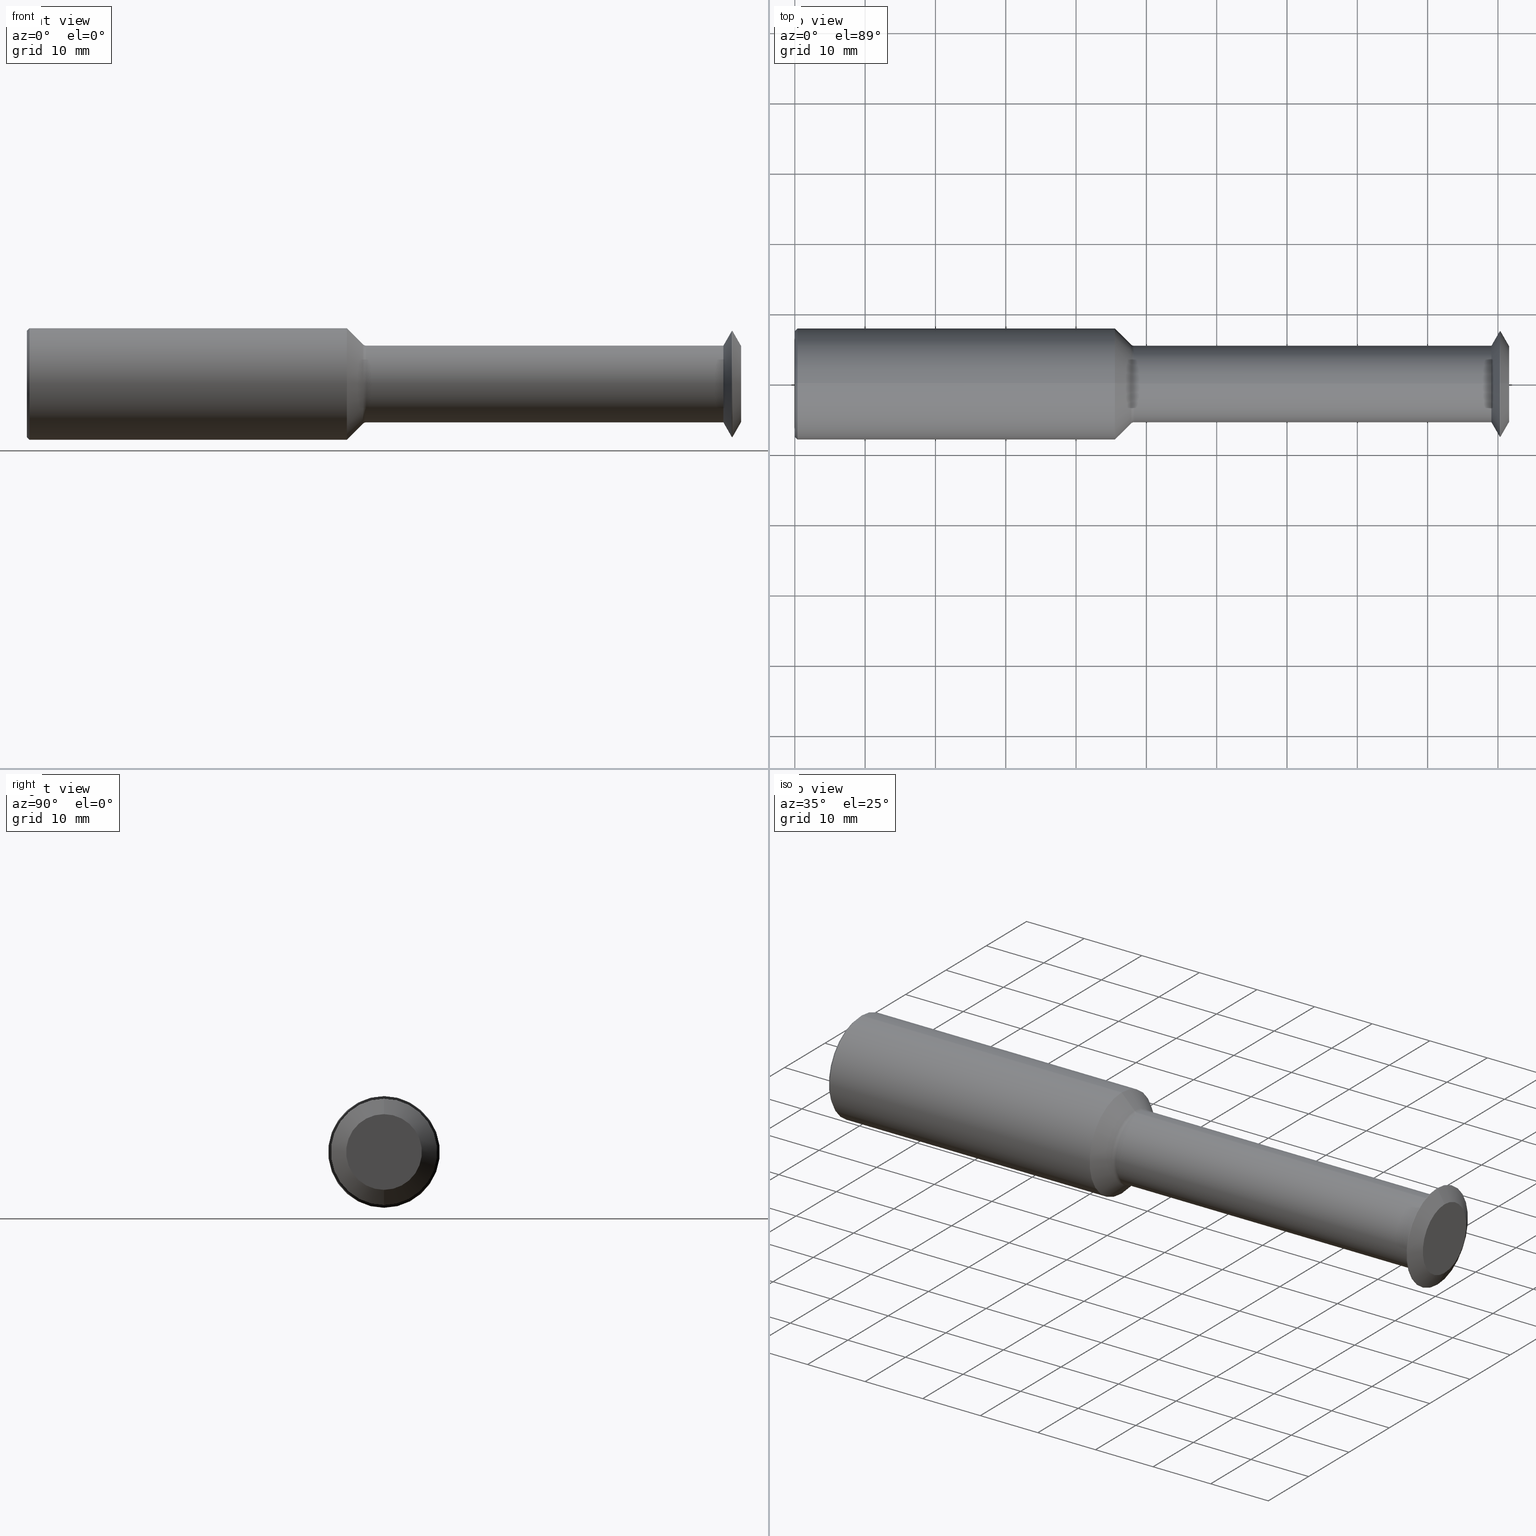
[diagram: canonical four-view strip — front | top / right | iso, engineering-drawing reading convention]
A machine part, canonical four-view strip (front | top / right | iso — engineering-drawing reading convention). The complete STEP part file that produces these views, byte-faithful:
ISO-10303-21;
HEADER;
FILE_DESCRIPTION (( 'STEP AP214' ),
    '1' );
FILE_NAME ('SPTM595L.STEP',
    '2019-04-23T20:43:46',
    ( '' ),
    ( '' ),
    'SwSTEP 2.0',
    'SolidWorks 2018',
    '' );
FILE_SCHEMA (( 'AUTOMOTIVE_DESIGN' ));
ENDSEC;

DATA;
#1 = FACE_OUTER_BOUND ( 'NONE', #487, .T. ) ;
#2 = ORIENTED_EDGE ( 'NONE', *, *, #21, .T. ) ;
#3 = CARTESIAN_POINT ( 'NONE',  ( 1.792084553538009439, 0.0000000000000000000, 0.0000000000000000000 ) ) ;
#4 =( NAMED_UNIT ( * ) PLANE_ANGLE_UNIT ( ) SI_UNIT ( $, .RADIAN. ) );
#5 = ORIENTED_EDGE ( 'NONE', *, *, #110, .F. ) ;
#6 = CARTESIAN_POINT ( 'NONE',  ( 4.000000000000000000, 0.0000000000000000000, 0.0000000000000000000 ) ) ;
#7 = APPLICATION_PROTOCOL_DEFINITION ( 'draft international standard', 'automotive_design', 1998, #149 ) ;
#8 = ORIENTED_EDGE ( 'NONE', *, *, #407, .T. ) ;
#9 = DIRECTION ( 'NONE',  ( -1.000000000000000000, -0.0000000000000000000, -0.0000000000000000000 ) ) ;
#10 = CARTESIAN_POINT ( 'NONE',  ( 0.0000000000000000000, 0.0000000000000000000, 0.0000000000000000000 ) ) ;
#11 = CIRCLE ( 'NONE', #211, 0.3123500000000000165 ) ;
#12 = VERTEX_POINT ( 'NONE', #296 ) ;
#13 = CIRCLE ( 'NONE', #41, 0.2149999999999989975 ) ;
#14 = EDGE_CURVE ( 'NONE', #370, #381, #327, .T. ) ;
#15 = VECTOR ( 'NONE', #272, 39.37007874015748143 ) ;
#16 = CARTESIAN_POINT ( 'NONE',  ( 3.947934553538009705, 0.0000000000000000000, 0.2974999999999992650 ) ) ;
#17 = LINE ( 'NONE', #308, #44 ) ;
#18 = VECTOR ( 'NONE', #354, 39.37007874015748143 ) ;
#19 = CARTESIAN_POINT ( 'NONE',  ( 1.882112223067673007, 0.0000000000000000000, 0.0000000000000000000 ) ) ;
#20 = AXIS2_PLACEMENT_3D ( 'NONE', #6, #258, #126 ) ;
#21 = EDGE_CURVE ( 'NONE', #375, #341, #192, .T. ) ;
#22 = CARTESIAN_POINT ( 'NONE',  ( 4.000000000000000000, 2.596251214192379353E-17, -0.2119999999999992446 ) ) ;
#23 = DIRECTION ( 'NONE',  ( 0.0000000000000000000, 0.0000000000000000000, 1.000000000000000000 ) ) ;
#24 = SHAPE_DEFINITION_REPRESENTATION ( #472, #422 ) ;
#25 = CARTESIAN_POINT ( 'NONE',  ( 3.947934553538009705, 3.643324227463366491E-17, 0.2974999999999992650 ) ) ;
#26 = AXIS2_PLACEMENT_3D ( 'NONE', #239, #431, #271 ) ;
#27 = ORIENTED_EDGE ( 'NONE', *, *, #61, .T. ) ;
#28 = CARTESIAN_POINT ( 'NONE',  ( 0.0000000000000000000, 0.0000000000000000000, 0.0000000000000000000 ) ) ;
#29 = AXIS2_PLACEMENT_3D ( 'NONE', #182, #313, #74 ) ;
#30 = EDGE_CURVE ( 'NONE', #12, #147, #491, .T. ) ;
#31 = DIRECTION ( 'NONE',  ( 0.0000000000000000000, 0.0000000000000000000, 1.000000000000000000 ) ) ;
#32 = CYLINDRICAL_SURFACE ( 'NONE', #131, 0.3123500000000000165 ) ;
#33 = EDGE_CURVE ( 'NONE', #97, #375, #324, .T. ) ;
#34 = ORIENTED_EDGE ( 'NONE', *, *, #100, .F. ) ;
#35 = UNCERTAINTY_MEASURE_WITH_UNIT (LENGTH_MEASURE( 1.000000000000000082E-05 ), #225, 'distance_accuracy_value', 'NONE');
#36 = CIRCLE ( 'NONE', #432, 0.2119999999999992446 ) ;
#37 = CIRCLE ( 'NONE', #235, 0.3123500000000000165 ) ;
#38 = VECTOR ( 'NONE', #193, 39.37007874015748143 ) ;
#39 = CARTESIAN_POINT ( 'NONE',  ( 1.899789892597337326, 0.0000000000000000000, 0.2399999999999992417 ) ) ;
#40 = VERTEX_POINT ( 'NONE', #128 ) ;
#41 = AXIS2_PLACEMENT_3D ( 'NONE', #274, #429, #31 ) ;
#42 = ORIENTED_EDGE ( 'NONE', *, *, #480, .T. ) ;
#43 = DIRECTION ( 'NONE',  ( 0.0000000000000000000, 0.0000000000000000000, 1.000000000000000000 ) ) ;
#44 = VECTOR ( 'NONE', #162, 39.37007874015748143 ) ;
#45 = TOROIDAL_SURFACE ( 'NONE', #494, 0.2399999999999992417, 0.02500000000000025119 ) ;
#46 = AXIS2_PLACEMENT_3D ( 'NONE', #64, #394, #52 ) ;
#47 = ORIENTED_EDGE ( 'NONE', *, *, #146, .F. ) ;
#48 = ORIENTED_EDGE ( 'NONE', *, *, #50, .F. ) ;
#49 = APPLICATION_CONTEXT ( 'automotive_design' ) ;
#50 = EDGE_CURVE ( 'NONE', #381, #402, #501, .T. ) ;
#51 = ADVANCED_FACE ( 'NONE', ( #106 ), #236, .T. ) ;
#52 = DIRECTION ( 'NONE',  ( 0.0000000000000000000, 0.0000000000000000000, 1.000000000000000000 ) ) ;
#53 =( GEOMETRIC_REPRESENTATION_CONTEXT ( 3 ) GLOBAL_UNCERTAINTY_ASSIGNED_CONTEXT ( ( #458 ) ) GLOBAL_UNIT_ASSIGNED_CONTEXT ( ( #466, #298, #142 ) ) REPRESENTATION_CONTEXT ( 'NONE', 'WORKASPACE' ) );
#54 = FACE_OUTER_BOUND ( 'NONE', #158, .T. ) ;
#55 = ORIENTED_EDGE ( 'NONE', *, *, #412, .F. ) ;
#56 = EDGE_LOOP ( 'NONE', ( #278, #59, #390, #78 ) ) ;
#57 = MANIFOLD_SOLID_BREP ( '3BF0D88D-D43F-4f87-A83C-24182A9B4820-GAAFaceID9', #413 ) ;
#58 = DIRECTION ( 'NONE',  ( 0.0000000000000000000, 0.0000000000000000000, 1.000000000000000000 ) ) ;
#59 = ORIENTED_EDGE ( 'NONE', *, *, #127, .T. ) ;
#60 = ORIENTED_EDGE ( 'NONE', *, *, #111, .F. ) ;
#61 = EDGE_CURVE ( 'NONE', #381, #370, #11, .T. ) ;
#62 = CARTESIAN_POINT ( 'NONE',  ( 3.947934553538009705, 0.0000000000000000000, -0.2974999999999992650 ) ) ;
#63 = AXIS2_PLACEMENT_3D ( 'NONE', #368, #133, #330 ) ;
#64 = CARTESIAN_POINT ( 'NONE',  ( 3.947934553538009705, 0.0000000000000000000, 0.0000000000000000000 ) ) ;
#65 = CARTESIAN_POINT ( 'NONE',  ( 0.0000000000000000000, 0.0000000000000000000, 0.0000000000000000000 ) ) ;
#66 = FACE_OUTER_BOUND ( 'NONE', #231, .T. ) ;
#67 = DIRECTION ( 'NONE',  ( 0.0000000000000000000, 0.0000000000000000000, 1.000000000000000000 ) ) ;
#68 = ORIENTED_EDGE ( 'NONE', *, *, #118, .T. ) ;
#69 = DIRECTION ( 'NONE',  ( 0.0000000000000000000, 0.0000000000000000000, 1.000000000000000000 ) ) ;
#70 = CARTESIAN_POINT ( 'NONE',  ( 1.899789892597337326, 0.0000000000000000000, 0.0000000000000000000 ) ) ;
#71 = LENGTH_MEASURE_WITH_UNIT ( LENGTH_MEASURE( 0.02539999999999999897 ), #267 );
#72 = FILL_AREA_STYLE_COLOUR ( '', #307 ) ;
#73 = AXIS2_PLACEMENT_3D ( 'NONE', #107, #121, #159 ) ;
#74 = DIRECTION ( 'NONE',  ( 0.0000000000000000000, 0.0000000000000000000, 1.000000000000000000 ) ) ;
#75 = VECTOR ( 'NONE', #282, 39.37007874015748143 ) ;
#76 = ORIENTED_EDGE ( 'NONE', *, *, #33, .F. ) ;
#77 = DIRECTION ( 'NONE',  ( -1.000000000000000000, -0.0000000000000000000, -0.0000000000000000000 ) ) ;
#78 = ORIENTED_EDGE ( 'NONE', *, *, #304, .F. ) ;
#79 = CARTESIAN_POINT ( 'NONE',  ( 0.0000000000000000000, 3.733335767200705936E-17, 0.2973500000000000587 ) ) ;
#80 = ORIENTED_EDGE ( 'NONE', *, *, #462, .F. ) ;
#81 = VERTEX_POINT ( 'NONE', #90 ) ;
#82 = LINE ( 'NONE', #486, #157 ) ;
#83 = EDGE_LOOP ( 'NONE', ( #27, #383, #371, #48 ) ) ;
#84 = PRESENTATION_LAYER_ASSIGNMENT (  '', '', ( #373 ) ) ;
#85 = DIMENSIONAL_EXPONENTS ( 1.000000000000000000, 0.0000000000000000000, 0.0000000000000000000, 0.0000000000000000000, 0.0000000000000000000, 0.0000000000000000000, 0.0000000000000000000 ) ;
#86 = PRESENTATION_STYLE_ASSIGNMENT (( #303 ) ) ;
#87 = CIRCLE ( 'NONE', #187, 0.2223223304703354497 ) ;
#88 = AXIS2_PLACEMENT_3D ( 'NONE', #39, #326, #321 ) ;
#89 = ORIENTED_EDGE ( 'NONE', *, *, #21, .F. ) ;
#90 = CARTESIAN_POINT ( 'NONE',  ( 4.000000000000000000, 3.119787720827873230E-17, -0.2119999999999992446 ) ) ;
#91 = EDGE_CURVE ( 'NONE', #402, #356, #37, .T. ) ;
#92 = ADVANCED_FACE ( 'NONE', ( #287 ), #254, .T. ) ;
#93 = EDGE_CURVE ( 'NONE', #397, #227, #292, .T. ) ;
#94 = ADVANCED_FACE ( 'NONE', ( #405 ), #138, .T. ) ;
#95 = ORIENTED_EDGE ( 'NONE', *, *, #363, .F. ) ;
#96 = ADVANCED_FACE ( 'NONE', ( #424 ), #452, .T. ) ;
#97 = VERTEX_POINT ( 'NONE', #485 ) ;
#98 =( NAMED_UNIT ( * ) SI_UNIT ( $, .STERADIAN. ) SOLID_ANGLE_UNIT ( ) );
#99 = ADVANCED_FACE ( 'NONE', ( #66 ), #350, .T. ) ;
#100 = EDGE_CURVE ( 'NONE', #227, #397, #184, .T. ) ;
#101 = DIRECTION ( 'NONE',  ( 0.0000000000000000000, 0.0000000000000000000, 1.000000000000000000 ) ) ;
#102 = ORIENTED_EDGE ( 'NONE', *, *, #462, .T. ) ;
#103 = DIRECTION ( 'NONE',  ( 1.000000000000000000, 0.0000000000000000000, 0.0000000000000000000 ) ) ;
#104 = FACE_OUTER_BOUND ( 'NONE', #56, .T. ) ;
#105 = DIRECTION ( 'NONE',  ( -1.000000000000000000, -0.0000000000000000000, -0.0000000000000000000 ) ) ;
#106 = FACE_OUTER_BOUND ( 'NONE', #83, .T. ) ;
#107 = CARTESIAN_POINT ( 'NONE',  ( 0.01500000000000011394, 0.0000000000000000000, 0.0000000000000000000 ) ) ;
#108 = DIRECTION ( 'NONE',  ( 0.0000000000000000000, 0.0000000000000000000, -1.000000000000000000 ) ) ;
#109 = ORIENTED_EDGE ( 'NONE', *, *, #30, .T. ) ;
#110 = EDGE_CURVE ( 'NONE', #341, #375, #13, .T. ) ;
#111 = EDGE_CURVE ( 'NONE', #206, #425, #230, .T. ) ;
#112 = DIRECTION ( 'NONE',  ( -1.000000000000000000, -0.0000000000000000000, -0.0000000000000000000 ) ) ;
#113 = CARTESIAN_POINT ( 'NONE',  ( 1.882112223067673007, 0.0000000000000000000, 0.0000000000000000000 ) ) ;
#114 = ORIENTED_EDGE ( 'NONE', *, *, #91, .F. ) ;
#115 = LINE ( 'NONE', #22, #143 ) ;
#116 = CARTESIAN_POINT ( 'NONE',  ( 4.000000000000000000, 0.0000000000000000000, 0.2119999999999992446 ) ) ;
#117 = ORIENTED_EDGE ( 'NONE', *, *, #489, .F. ) ;
#118 = EDGE_CURVE ( 'NONE', #97, #279, #488, .T. ) ;
#119 = CARTESIAN_POINT ( 'NONE',  ( 3.900590701688721573, 3.138157422815083488E-17, 0.2149999999999992473 ) ) ;
#120 = EDGE_CURVE ( 'NONE', #81, #40, #188, .T. ) ;
#121 = DIRECTION ( 'NONE',  ( 1.000000000000000000, 0.0000000000000000000, 0.0000000000000000000 ) ) ;
#122 = EDGE_CURVE ( 'NONE', #370, #356, #319, .T. ) ;
#123 = FACE_OUTER_BOUND ( 'NONE', #244, .T. ) ;
#124 = AXIS2_PLACEMENT_3D ( 'NONE', #349, #345, #445 ) ;
#125 =( NAMED_UNIT ( * ) PLANE_ANGLE_UNIT ( ) SI_UNIT ( $, .RADIAN. ) );
#126 = DIRECTION ( 'NONE',  ( 0.0000000000000000000, 0.0000000000000000000, 1.000000000000000000 ) ) ;
#127 = EDGE_CURVE ( 'NONE', #490, #370, #129, .T. ) ;
#128 = CARTESIAN_POINT ( 'NONE',  ( 4.000000000000000000, 0.0000000000000000000, 0.2119999999999992446 ) ) ;
#129 = LINE ( 'NONE', #229, #15 ) ;
#130 = DIRECTION ( 'NONE',  ( -1.000000000000000000, -0.0000000000000000000, -0.0000000000000000000 ) ) ;
#131 = AXIS2_PLACEMENT_3D ( 'NONE', #65, #439, #224 ) ;
#132 = ADVANCED_FACE ( 'NONE', ( #104 ), #220, .T. ) ;
#133 = DIRECTION ( 'NONE',  ( -1.000000000000000000, 0.0000000000000000000, -0.0000000000000000000 ) ) ;
#134 = ORIENTED_EDGE ( 'NONE', *, *, #305, .T. ) ;
#135 = CIRCLE ( 'NONE', #353, 0.02500000000000024425 ) ;
#136 = DIRECTION ( 'NONE',  ( -1.000000000000000000, -0.0000000000000000000, -0.0000000000000000000 ) ) ;
#137 = ORIENTED_EDGE ( 'NONE', *, *, #377, .T. ) ;
#138 = CONICAL_SURFACE ( 'NONE', #249, 0.2223223304703354497, 0.7853981633974538301 ) ;
#139 = DIRECTION ( 'NONE',  ( 0.0000000000000000000, 0.0000000000000000000, -1.000000000000000000 ) ) ;
#140 = CYLINDRICAL_SURFACE ( 'NONE', #322, 0.2974999999999992650 ) ;
#141 = ADVANCED_FACE ( 'NONE', ( #333 ), #404, .T. ) ;
#142 =( NAMED_UNIT ( * ) SI_UNIT ( $, .STERADIAN. ) SOLID_ANGLE_UNIT ( ) );
#143 = VECTOR ( 'NONE', #347, 39.37007874015748143 ) ;
#144 = FACE_OUTER_BOUND ( 'NONE', #194, .T. ) ;
#145 = EDGE_LOOP ( 'NONE', ( #484, #434, #283, #446 ) ) ;
#146 = EDGE_CURVE ( 'NONE', #356, #402, #291, .T. ) ;
#147 = VERTEX_POINT ( 'NONE', #79 ) ;
#148 = DIRECTION ( 'NONE',  ( 1.000000000000000000, 0.0000000000000000000, 0.0000000000000000000 ) ) ;
#149 = APPLICATION_CONTEXT ( 'automotive_design' ) ;
#150 = DIRECTION ( 'NONE',  ( 0.0000000000000000000, 0.0000000000000000000, 1.000000000000000000 ) ) ;
#151 = PLANE ( 'NONE',  #63 ) ;
#152 = DIRECTION ( 'NONE',  ( 0.0000000000000000000, 0.0000000000000000000, 1.000000000000000000 ) ) ;
#153 = VECTOR ( 'NONE', #443, 39.37007874015748143 ) ;
#154 = PRESENTATION_STYLE_ASSIGNMENT (( #294 ) ) ;
#155 = ORIENTED_EDGE ( 'NONE', *, *, #91, .T. ) ;
#156 = CARTESIAN_POINT ( 'NONE',  ( 4.000000000000000000, 0.0000000000000000000, 0.0000000000000000000 ) ) ;
#157 = VECTOR ( 'NONE', #177, 39.37007874015748143 ) ;
#158 = EDGE_LOOP ( 'NONE', ( #55, #273, #137, #60 ) ) ;
#159 = DIRECTION ( 'NONE',  ( 0.0000000000000000000, 0.0000000000000000000, -1.000000000000000000 ) ) ;
#160 = CARTESIAN_POINT ( 'NONE',  ( 1.792084553538009439, 0.0000000000000000000, 0.3123500000000000165 ) ) ;
#161 = CARTESIAN_POINT ( 'NONE',  ( 0.0000000000000000000, 0.0000000000000000000, -0.2973500000000000587 ) ) ;
#162 = DIRECTION ( 'NONE',  ( -1.000000000000000000, -0.0000000000000000000, -0.0000000000000000000 ) ) ;
#163 = AXIS2_PLACEMENT_3D ( 'NONE', #374, #205, #69 ) ;
#164 = EDGE_CURVE ( 'NONE', #490, #253, #380, .T. ) ;
#165 = CARTESIAN_POINT ( 'NONE',  ( 1.899789892597337326, 2.939152317953638724E-17, -0.2399999999999992417 ) ) ;
#166 = PRODUCT_DEFINITION ( 'UNKNOWN', '', #409, #285 ) ;
#167 = CARTESIAN_POINT ( 'NONE',  ( 0.0000000000000000000, 0.0000000000000000000, 0.2149999999999991362 ) ) ;
#168 = CARTESIAN_POINT ( 'NONE',  ( 1.899789892597337326, 0.0000000000000000000, 0.0000000000000000000 ) ) ;
#169 = LINE ( 'NONE', #167, #270 ) ;
#170 = FILL_AREA_STYLE ('',( #72 ) ) ;
#171 = ORIENTED_EDGE ( 'NONE', *, *, #118, .F. ) ;
#172 = CARTESIAN_POINT ( 'NONE',  ( 1.882112223067673007, 0.0000000000000000000, 0.0000000000000000000 ) ) ;
#173 = ORIENTED_EDGE ( 'NONE', *, *, #122, .F. ) ;
#174 = FILL_AREA_STYLE_COLOUR ( '', #290 ) ;
#175 = EDGE_CURVE ( 'NONE', #147, #12, #289, .T. ) ;
#176 = DIRECTION ( 'NONE',  ( 0.0000000000000000000, 0.0000000000000000000, 1.000000000000000000 ) ) ;
#177 = DIRECTION ( 'NONE',  ( 0.7071067811865507924, 8.659560562354895880E-17, 0.7071067811865443531 ) ) ;
#178 = DIRECTION ( 'NONE',  ( 0.0000000000000000000, 0.0000000000000000000, 1.000000000000000000 ) ) ;
#179 = DIRECTION ( 'NONE',  ( 1.000000000000000000, 0.0000000000000000000, 0.0000000000000000000 ) ) ;
#180 = EDGE_CURVE ( 'NONE', #12, #356, #419, .T. ) ;
#181 = EDGE_LOOP ( 'NONE', ( #76, #68, #42, #89 ) ) ;
#182 = CARTESIAN_POINT ( 'NONE',  ( 3.900590701688721573, 0.0000000000000000000, 0.0000000000000000000 ) ) ;
#183 = ORIENTED_EDGE ( 'NONE', *, *, #295, .F. ) ;
#184 = CIRCLE ( 'NONE', #269, 0.2974999999999992650 ) ;
#185 = EDGE_LOOP ( 'NONE', ( #334, #134, #430, #228 ) ) ;
#186 = DIRECTION ( 'NONE',  ( -1.000000000000000000, -0.0000000000000000000, -0.0000000000000000000 ) ) ;
#187 = AXIS2_PLACEMENT_3D ( 'NONE', #113, #276, #152 ) ;
#188 = CIRCLE ( 'NONE', #286, 0.2119999999999992446 ) ;
#189 = DIRECTION ( 'NONE',  ( 0.0000000000000000000, 0.0000000000000000000, 1.000000000000000000 ) ) ;
#190 = CARTESIAN_POINT ( 'NONE',  ( 1.899789892597337326, 0.0000000000000000000, 0.0000000000000000000 ) ) ;
#191 = AXIS2_PLACEMENT_3D ( 'NONE', #168, #130, #101 ) ;
#192 = CIRCLE ( 'NONE', #191, 0.2149999999999989975 ) ;
#193 = DIRECTION ( 'NONE',  ( -0.7071067811865435759, 0.0000000000000000000, 0.7071067811865514585 ) ) ;
#194 = EDGE_LOOP ( 'NONE', ( #80, #423, #196, #400 ) ) ;
#195 = CARTESIAN_POINT ( 'NONE',  ( 0.0000000000000000000, 3.643324227463366491E-17, -0.2974999999999992650 ) ) ;
#196 = ORIENTED_EDGE ( 'NONE', *, *, #366, .T. ) ;
#197 = ORIENTED_EDGE ( 'NONE', *, *, #305, .F. ) ;
#198 = LENGTH_MEASURE_WITH_UNIT ( LENGTH_MEASURE( 0.02539999999999999897 ), #217 );
#199 = AXIS2_PLACEMENT_3D ( 'NONE', #3, #293, #178 ) ;
#200 = CARTESIAN_POINT ( 'NONE',  ( 3.947934553538009705, 0.0000000000000000000, 0.0000000000000000000 ) ) ;
#201 = STYLED_ITEM ( 'NONE', ( #86 ), #57 ) ;
#202 = DIRECTION ( 'NONE',  ( 0.0000000000000000000, 0.0000000000000000000, 1.000000000000000000 ) ) ;
#203 = FACE_OUTER_BOUND ( 'NONE', #436, .T. ) ;
#204 = DIRECTION ( 'NONE',  ( -1.000000000000000000, -0.0000000000000000000, -0.0000000000000000000 ) ) ;
#205 = DIRECTION ( 'NONE',  ( -1.000000000000000000, -0.0000000000000000000, -0.0000000000000000000 ) ) ;
#206 = VERTEX_POINT ( 'NONE', #344 ) ;
#208 = CARTESIAN_POINT ( 'NONE',  ( 0.0000000000000000000, 0.0000000000000000000, 0.0000000000000000000 ) ) ;
#207 = VECTOR ( 'NONE', #281, 39.37007874015748143 ) ;
#209 =( LENGTH_UNIT ( ) NAMED_UNIT ( * ) SI_UNIT ( $, .METRE. ) );
#210 =( NAMED_UNIT ( * ) SI_UNIT ( $, .STERADIAN. ) SOLID_ANGLE_UNIT ( ) );
#211 = AXIS2_PLACEMENT_3D ( 'NONE', #440, #204, #335 ) ;
#212 = ADVANCED_FACE ( 'NONE', ( #1 ), #140, .T. ) ;
#213 =( CONVERSION_BASED_UNIT ( 'INCH', #198 ) LENGTH_UNIT ( ) NAMED_UNIT ( #85 ) );
#214 = CARTESIAN_POINT ( 'NONE',  ( 4.000000000000000000, 0.0000000000000000000, 0.0000000000000000000 ) ) ;
#215 = DIRECTION ( 'NONE',  ( 0.0000000000000000000, 0.0000000000000000000, -1.000000000000000000 ) ) ;
#216 = DIRECTION ( 'NONE',  ( 0.0000000000000000000, 0.0000000000000000000, 1.000000000000000000 ) ) ;
#217 =( LENGTH_UNIT ( ) NAMED_UNIT ( * ) SI_UNIT ( $, .METRE. ) );
#218 = PRESENTATION_LAYER_ASSIGNMENT (  '', '', ( #201 ) ) ;
#219 = ORIENTED_EDGE ( 'NONE', *, *, #127, .F. ) ;
#220 = CONICAL_SURFACE ( 'NONE', #288, 0.2223223304703354497, 0.7853981633974538301 ) ;
#221 = CARTESIAN_POINT ( 'NONE',  ( 1.899789892597337326, 2.632990618166798327E-17, -0.2149999999999989975 ) ) ;
#222 = FILL_AREA_STYLE ('',( #174 ) ) ;
#223 = LINE ( 'NONE', #351, #38 ) ;
#224 = DIRECTION ( 'NONE',  ( 0.0000000000000000000, 0.0000000000000000000, 1.000000000000000000 ) ) ;
#225 =( CONVERSION_BASED_UNIT ( 'INCH', #414 ) LENGTH_UNIT ( ) NAMED_UNIT ( #437 ) );
#226 = CARTESIAN_POINT ( 'NONE',  ( 0.0000000000000000000, 3.825184277136757839E-17, -0.3123500000000000165 ) ) ;
#227 = VERTEX_POINT ( 'NONE', #460 ) ;
#228 = ORIENTED_EDGE ( 'NONE', *, *, #448, .F. ) ;
#229 = CARTESIAN_POINT ( 'NONE',  ( 1.882112223067673007, 2.722663303894763800E-17, -0.2223223304703354497 ) ) ;
#230 = CIRCLE ( 'NONE', #355, 0.2974999999999992650 ) ;
#231 = EDGE_LOOP ( 'NONE', ( #8, #459, #5, #332 ) ) ;
#232 = LINE ( 'NONE', #62, #153 ) ;
#233 = MECHANICAL_DESIGN_GEOMETRIC_PRESENTATION_REPRESENTATION (  '', ( #201 ), #316 ) ;
#234 = CARTESIAN_POINT ( 'NONE',  ( 1.882112223067673007, 0.0000000000000000000, 0.0000000000000000000 ) ) ;
#235 = AXIS2_PLACEMENT_3D ( 'NONE', #237, #468, #369 ) ;
#236 = CYLINDRICAL_SURFACE ( 'NONE', #325, 0.3123500000000000165 ) ;
#237 = CARTESIAN_POINT ( 'NONE',  ( 0.01500000000000011394, 0.0000000000000000000, 0.0000000000000000000 ) ) ;
#238 = VECTOR ( 'NONE', #299, 39.37007874015748143 ) ;
#239 = CARTESIAN_POINT ( 'NONE',  ( 0.0000000000000000000, 0.0000000000000000000, 0.0000000000000000000 ) ) ;
#240 = LINE ( 'NONE', #25, #75 ) ;
#241 = DIRECTION ( 'NONE',  ( 0.0000000000000000000, 0.0000000000000000000, 1.000000000000000000 ) ) ;
#242 = DIMENSIONAL_EXPONENTS ( 1.000000000000000000, 0.0000000000000000000, 0.0000000000000000000, 0.0000000000000000000, 0.0000000000000000000, 0.0000000000000000000, 0.0000000000000000000 ) ;
#243 = DIRECTION ( 'NONE',  ( -1.000000000000000000, -0.0000000000000000000, -0.0000000000000000000 ) ) ;
#244 = EDGE_LOOP ( 'NONE', ( #197, #171, #260, #314 ) ) ;
#245 = DIRECTION ( 'NONE',  ( -1.000000000000000000, -0.0000000000000000000, -0.0000000000000000000 ) ) ;
#246 = ORIENTED_EDGE ( 'NONE', *, *, #363, .T. ) ;
#247 = EDGE_CURVE ( 'NONE', #253, #490, #87, .T. ) ;
#248 = CARTESIAN_POINT ( 'NONE',  ( 0.0000000000000000000, 0.0000000000000000000, 0.0000000000000000000 ) ) ;
#249 = AXIS2_PLACEMENT_3D ( 'NONE', #19, #420, #241 ) ;
#250 = ADVANCED_FACE ( 'NONE', ( #252 ), #496, .F. ) ;
#251 = FACE_OUTER_BOUND ( 'NONE', #145, .T. ) ;
#252 = FACE_OUTER_BOUND ( 'NONE', #255, .T. ) ;
#253 = VERTEX_POINT ( 'NONE', #352 ) ;
#254 = CYLINDRICAL_SURFACE ( 'NONE', #256, 0.2974999999999992650 ) ;
#255 = EDGE_LOOP ( 'NONE', ( #500, #102, #2, #266 ) ) ;
#256 = AXIS2_PLACEMENT_3D ( 'NONE', #248, #9, #176 ) ;
#257 = ORIENTED_EDGE ( 'NONE', *, *, #304, .T. ) ;
#258 = DIRECTION ( 'NONE',  ( -1.000000000000000000, -0.0000000000000000000, -0.0000000000000000000 ) ) ;
#259 = CONICAL_SURFACE ( 'NONE', #26, 0.2973500000000000587, 0.7853981633974437271 ) ;
#260 = ORIENTED_EDGE ( 'NONE', *, *, #448, .T. ) ;
#261 = DIRECTION ( 'NONE',  ( -1.000000000000000000, -0.0000000000000000000, -0.0000000000000000000 ) ) ;
#262 = EDGE_LOOP ( 'NONE', ( #117, #357, #348, #114 ) ) ;
#263 = AXIS2_PLACEMENT_3D ( 'NONE', #200, #148, #215 ) ;
#264 = DIRECTION ( 'NONE',  ( -1.000000000000000000, -0.0000000000000000000, -0.0000000000000000000 ) ) ;
#265 = DIRECTION ( 'NONE',  ( 0.0000000000000000000, 0.0000000000000000000, 1.000000000000000000 ) ) ;
#266 = ORIENTED_EDGE ( 'NONE', *, *, #366, .F. ) ;
#267 =( LENGTH_UNIT ( ) NAMED_UNIT ( * ) SI_UNIT ( $, .METRE. ) );
#268 = PRODUCT ( 'SPTM595L', 'SPTM595L', '', ( #379 ) ) ;
#269 = AXIS2_PLACEMENT_3D ( 'NONE', #441, #261, #189 ) ;
#270 = VECTOR ( 'NONE', #264, 39.37007874015748143 ) ;
#271 = DIRECTION ( 'NONE',  ( 0.0000000000000000000, 0.0000000000000000000, -1.000000000000000000 ) ) ;
#272 = DIRECTION ( 'NONE',  ( -0.7071067811865435759, 8.659560562354980929E-17, -0.7071067811865514585 ) ) ;
#273 = ORIENTED_EDGE ( 'NONE', *, *, #120, .T. ) ;
#274 = CARTESIAN_POINT ( 'NONE',  ( 1.899789892597337326, 0.0000000000000000000, 0.0000000000000000000 ) ) ;
#275 = AXIS2_PLACEMENT_3D ( 'NONE', #208, #365, #58 ) ;
#276 = DIRECTION ( 'NONE',  ( -1.000000000000000000, -0.0000000000000000000, -0.0000000000000000000 ) ) ;
#277 = AXIS2_PLACEMENT_3D ( 'NONE', #234, #243, #265 ) ;
#278 = ORIENTED_EDGE ( 'NONE', *, *, #247, .T. ) ;
#279 = VERTEX_POINT ( 'NONE', #119 ) ;
#280 = DIRECTION ( 'NONE',  ( -1.000000000000000000, -0.0000000000000000000, -0.0000000000000000000 ) ) ;
#281 = DIRECTION ( 'NONE',  ( 0.7071067811865507924, 0.0000000000000000000, -0.7071067811865443531 ) ) ;
#282 = DIRECTION ( 'NONE',  ( 0.4977310399126166907, 1.062174661273173415E-16, 0.8673314314075705189 ) ) ;
#283 = ORIENTED_EDGE ( 'NONE', *, *, #482, .F. ) ;
#284 = CIRCLE ( 'NONE', #88, 0.02500000000000024425 ) ;
#285 = PRODUCT_DEFINITION_CONTEXT ( 'detailed design', #149, 'design' ) ;
#286 = AXIS2_PLACEMENT_3D ( 'NONE', #156, #495, #378 ) ;
#287 = FACE_OUTER_BOUND ( 'NONE', #457, .T. ) ;
#288 = AXIS2_PLACEMENT_3D ( 'NONE', #172, #300, #499 ) ;
#289 = CIRCLE ( 'NONE', #318, 0.2973500000000000587 ) ;
#290 = COLOUR_RGB ( '',0.7529411764705882248, 0.7529411764705882248, 0.7529411764705882248 ) ;
#291 = CIRCLE ( 'NONE', #73, 0.3123500000000000165 ) ;
#292 = CIRCLE ( 'NONE', #46, 0.2974999999999992650 ) ;
#293 = DIRECTION ( 'NONE',  ( -1.000000000000000000, -0.0000000000000000000, -0.0000000000000000000 ) ) ;
#294 = SURFACE_STYLE_USAGE ( .BOTH. , #449 ) ;
#295 = EDGE_CURVE ( 'NONE', #40, #81, #36, .T. ) ;
#296 = CARTESIAN_POINT ( 'NONE',  ( 0.0000000000000000000, 0.0000000000000000000, -0.2973500000000000587 ) ) ;
#297 = DIRECTION ( 'NONE',  ( -1.000000000000000000, -0.0000000000000000000, -0.0000000000000000000 ) ) ;
#298 =( NAMED_UNIT ( * ) PLANE_ANGLE_UNIT ( ) SI_UNIT ( $, .RADIAN. ) );
#299 = DIRECTION ( 'NONE',  ( -1.000000000000000000, -0.0000000000000000000, -0.0000000000000000000 ) ) ;
#300 = DIRECTION ( 'NONE',  ( -1.000000000000000000, -0.0000000000000000000, -0.0000000000000000000 ) ) ;
#301 = ORIENTED_EDGE ( 'NONE', *, *, #489, .T. ) ;
#302 = FACE_OUTER_BOUND ( 'NONE', #497, .T. ) ;
#303 = SURFACE_STYLE_USAGE ( .BOTH. , #435 ) ;
#304 = EDGE_CURVE ( 'NONE', #253, #381, #223, .T. ) ;
#305 = EDGE_CURVE ( 'NONE', #279, #397, #240, .T. ) ;
#306 = ADVANCED_FACE ( 'NONE', ( #478 ), #259, .T. ) ;
#307 = COLOUR_RGB ( '',0.7529411764705882248, 0.7529411764705882248, 0.7529411764705882248 ) ;
#308 = CARTESIAN_POINT ( 'NONE',  ( 0.0000000000000000000, 0.0000000000000000000, 0.2974999999999992650 ) ) ;
#309 = CARTESIAN_POINT ( 'NONE',  ( 3.950934553538009375, 0.0000000000000000000, 0.0000000000000000000 ) ) ;
#310 = ORIENTED_EDGE ( 'NONE', *, *, #465, .T. ) ;
#311 = CARTESIAN_POINT ( 'NONE',  ( 0.01500000000000011394, 0.0000000000000000000, 0.3123500000000000165 ) ) ;
#312 = AXIS2_PLACEMENT_3D ( 'NONE', #389, #393, #450 ) ;
#313 = DIRECTION ( 'NONE',  ( -1.000000000000000000, -0.0000000000000000000, -0.0000000000000000000 ) ) ;
#314 = ORIENTED_EDGE ( 'NONE', *, *, #100, .T. ) ;
#315 = DIRECTION ( 'NONE',  ( 1.000000000000000000, 0.0000000000000000000, 0.0000000000000000000 ) ) ;
#316 =( GEOMETRIC_REPRESENTATION_CONTEXT ( 3 ) GLOBAL_UNCERTAINTY_ASSIGNED_CONTEXT ( ( #481 ) ) GLOBAL_UNIT_ASSIGNED_CONTEXT ( ( #213, #4, #210 ) ) REPRESENTATION_CONTEXT ( 'NONE', 'WORKASPACE' ) );
#317 = ORIENTED_EDGE ( 'NONE', *, *, #93, .F. ) ;
#318 = AXIS2_PLACEMENT_3D ( 'NONE', #385, #451, #391 ) ;
#319 = LINE ( 'NONE', #226, #433 ) ;
#320 = DIRECTION ( 'NONE',  ( -0.4977310399126251839, 0.0000000000000000000, 0.8673314314075656339 ) ) ;
#321 = DIRECTION ( 'NONE',  ( 0.0000000000000000000, 0.0000000000000000000, -1.000000000000000000 ) ) ;
#322 = AXIS2_PLACEMENT_3D ( 'NONE', #454, #280, #456 ) ;
#323 = ORIENTED_EDGE ( 'NONE', *, *, #175, .T. ) ;
#324 = LINE ( 'NONE', #361, #238 ) ;
#325 = AXIS2_PLACEMENT_3D ( 'NONE', #483, #136, #498 ) ;
#326 = DIRECTION ( 'NONE',  ( 0.0000000000000000000, -1.000000000000000000, 0.0000000000000000000 ) ) ;
#327 = CIRCLE ( 'NONE', #199, 0.3123500000000000165 ) ;
#328 = CONICAL_SURFACE ( 'NONE', #340, 0.2974999999999992650, 1.049815545074584078 ) ;
#329 = LINE ( 'NONE', #116, #358 ) ;
#330 = DIRECTION ( 'NONE',  ( -0.0000000000000000000, 0.0000000000000000000, 1.000000000000000000 ) ) ;
#331 = AXIS2_PLACEMENT_3D ( 'NONE', #190, #395, #23 ) ;
#332 = ORIENTED_EDGE ( 'NONE', *, *, #480, .F. ) ;
#333 = FACE_OUTER_BOUND ( 'NONE', #181, .T. ) ;
#334 = ORIENTED_EDGE ( 'NONE', *, *, #407, .F. ) ;
#335 = DIRECTION ( 'NONE',  ( 0.0000000000000000000, 0.0000000000000000000, 1.000000000000000000 ) ) ;
#336 = AXIS2_PLACEMENT_3D ( 'NONE', #473, #297, #406 ) ;
#337 = APPLICATION_PROTOCOL_DEFINITION ( 'draft international standard', 'automotive_design', 1998, #49 ) ;
#338 = PLANE ( 'NONE',  #124 ) ;
#339 = ORIENTED_EDGE ( 'NONE', *, *, #465, .F. ) ;
#340 = AXIS2_PLACEMENT_3D ( 'NONE', #421, #179, #139 ) ;
#341 = VERTEX_POINT ( 'NONE', #493 ) ;
#342 = AXIS2_PLACEMENT_3D ( 'NONE', #343, #447, #415 ) ;
#343 = CARTESIAN_POINT ( 'NONE',  ( 3.900590701688721573, 0.0000000000000000000, 0.0000000000000000000 ) ) ;
#344 = CARTESIAN_POINT ( 'NONE',  ( 3.950934553538009375, 3.643324227463366491E-17, -0.2974999999999992095 ) ) ;
#345 = DIRECTION ( 'NONE',  ( 1.000000000000000000, 0.0000000000000000000, 0.0000000000000000000 ) ) ;
#346 = CARTESIAN_POINT ( 'NONE',  ( 0.01500000000000011394, 3.825184277136757839E-17, -0.3123500000000000165 ) ) ;
#347 = DIRECTION ( 'NONE',  ( -0.4977310399126251839, 1.062174661273167376E-16, -0.8673314314075656339 ) ) ;
#348 = ORIENTED_EDGE ( 'NONE', *, *, #180, .T. ) ;
#349 = CARTESIAN_POINT ( 'NONE',  ( 0.0000000000000000000, 0.0000000000000000000, 0.0000000000000000000 ) ) ;
#350 = CYLINDRICAL_SURFACE ( 'NONE', #275, 0.2149999999999991362 ) ;
#351 = CARTESIAN_POINT ( 'NONE',  ( 1.882112223067673007, 0.0000000000000000000, 0.2223223304703354497 ) ) ;
#352 = CARTESIAN_POINT ( 'NONE',  ( 1.882112223067673007, 0.0000000000000000000, 0.2223223304703356162 ) ) ;
#353 = AXIS2_PLACEMENT_3D ( 'NONE', #165, #471, #476 ) ;
#354 = DIRECTION ( 'NONE',  ( -1.000000000000000000, -0.0000000000000000000, -0.0000000000000000000 ) ) ;
#355 = AXIS2_PLACEMENT_3D ( 'NONE', #309, #112, #67 ) ;
#356 = VERTEX_POINT ( 'NONE', #346 ) ;
#357 = ORIENTED_EDGE ( 'NONE', *, *, #30, .F. ) ;
#358 = VECTOR ( 'NONE', #320, 39.37007874015748143 ) ;
#359 = PRODUCT_RELATED_PRODUCT_CATEGORY ( 'part', '', ( #268 ) ) ;
#360 = CONICAL_SURFACE ( 'NONE', #20, 0.2119999999999992446, 1.049815545074574308 ) ;
#361 = CARTESIAN_POINT ( 'NONE',  ( 0.0000000000000000000, 2.632990618166798943E-17, -0.2149999999999991362 ) ) ;
#362 = AXIS2_PLACEMENT_3D ( 'NONE', #214, #418, #202 ) ;
#363 = EDGE_CURVE ( 'NONE', #206, #227, #455, .T. ) ;
#364 = ORIENTED_EDGE ( 'NONE', *, *, #50, .T. ) ;
#365 = DIRECTION ( 'NONE',  ( -1.000000000000000000, -0.0000000000000000000, -0.0000000000000000000 ) ) ;
#366 = EDGE_CURVE ( 'NONE', #253, #341, #284, .T. ) ;
#367 = ADVANCED_FACE ( 'NONE', ( #492 ), #416, .T. ) ;
#368 = CARTESIAN_POINT ( 'NONE',  ( 4.000000000000000000, 0.2119999999999992446, 0.0000000000000000000 ) ) ;
#369 = DIRECTION ( 'NONE',  ( 0.0000000000000000000, 0.0000000000000000000, -1.000000000000000000 ) ) ;
#370 = VERTEX_POINT ( 'NONE', #382 ) ;
#371 = ORIENTED_EDGE ( 'NONE', *, *, #146, .T. ) ;
#372 = CARTESIAN_POINT ( 'NONE',  ( 3.950934553538009375, 0.0000000000000000000, 0.2974999999999992095 ) ) ;
#373 = STYLED_ITEM ( 'NONE', ( #154 ), #422 ) ;
#374 = CARTESIAN_POINT ( 'NONE',  ( 3.950934553538009375, 0.0000000000000000000, 0.0000000000000000000 ) ) ;
#375 = VERTEX_POINT ( 'NONE', #221 ) ;
#376 = ORIENTED_EDGE ( 'NONE', *, *, #180, .F. ) ;
#377 = EDGE_CURVE ( 'NONE', #40, #425, #329, .T. ) ;
#378 = DIRECTION ( 'NONE',  ( 0.0000000000000000000, 0.0000000000000000000, 1.000000000000000000 ) ) ;
#379 = PRODUCT_CONTEXT ( 'NONE', #49, 'mechanical' ) ;
#380 = CIRCLE ( 'NONE', #277, 0.2223223304703354497 ) ;
#381 = VERTEX_POINT ( 'NONE', #160 ) ;
#382 = CARTESIAN_POINT ( 'NONE',  ( 1.792084553538009439, 3.825184277136757839E-17, -0.3123500000000000165 ) ) ;
#383 = ORIENTED_EDGE ( 'NONE', *, *, #122, .T. ) ;
#384 =( GEOMETRIC_REPRESENTATION_CONTEXT ( 3 ) GLOBAL_UNCERTAINTY_ASSIGNED_CONTEXT ( ( #35 ) ) GLOBAL_UNIT_ASSIGNED_CONTEXT ( ( #225, #125, #98 ) ) REPRESENTATION_CONTEXT ( 'NONE', 'WORKASPACE' ) );
#385 = CARTESIAN_POINT ( 'NONE',  ( 0.0000000000000000000, 0.0000000000000000000, 0.0000000000000000000 ) ) ;
#386 = AXIS2_PLACEMENT_3D ( 'NONE', #10, #216, #103 ) ;
#387 = ORIENTED_EDGE ( 'NONE', *, *, #482, .T. ) ;
#388 = ORIENTED_EDGE ( 'NONE', *, *, #14, .T. ) ;
#389 = CARTESIAN_POINT ( 'NONE',  ( 0.0000000000000000000, 0.0000000000000000000, 0.0000000000000000000 ) ) ;
#390 = ORIENTED_EDGE ( 'NONE', *, *, #61, .F. ) ;
#391 = DIRECTION ( 'NONE',  ( 0.0000000000000000000, 0.0000000000000000000, -1.000000000000000000 ) ) ;
#392 = CIRCLE ( 'NONE', #163, 0.2974999999999992650 ) ;
#393 = DIRECTION ( 'NONE',  ( -1.000000000000000000, -0.0000000000000000000, -0.0000000000000000000 ) ) ;
#394 = DIRECTION ( 'NONE',  ( -1.000000000000000000, -0.0000000000000000000, -0.0000000000000000000 ) ) ;
#395 = DIRECTION ( 'NONE',  ( -1.000000000000000000, -0.0000000000000000000, -0.0000000000000000000 ) ) ;
#396 = ADVANCED_FACE ( 'NONE', ( #203 ), #32, .T. ) ;
#397 = VERTEX_POINT ( 'NONE', #16 ) ;
#398 = SURFACE_STYLE_FILL_AREA ( #222 ) ;
#399 = ORIENTED_EDGE ( 'NONE', *, *, #120, .F. ) ;
#400 = ORIENTED_EDGE ( 'NONE', *, *, #110, .T. ) ;
#401 = SURFACE_STYLE_FILL_AREA ( #170 ) ;
#402 = VERTEX_POINT ( 'NONE', #311 ) ;
#403 = VECTOR ( 'NONE', #245, 39.37007874015748143 ) ;
#404 = CYLINDRICAL_SURFACE ( 'NONE', #312, 0.2149999999999991362 ) ;
#405 = FACE_OUTER_BOUND ( 'NONE', #428, .T. ) ;
#406 = DIRECTION ( 'NONE',  ( 0.0000000000000000000, 0.0000000000000000000, -1.000000000000000000 ) ) ;
#407 = EDGE_CURVE ( 'NONE', #279, #97, #477, .T. ) ;
#408 = ADVANCED_FACE ( 'NONE', ( #144 ), #45, .F. ) ;
#409 = PRODUCT_DEFINITION_FORMATION_WITH_SPECIFIED_SOURCE ( 'ANY', '', #268, .NOT_KNOWN. ) ;
#410 = CARTESIAN_POINT ( 'NONE',  ( 0.0000000000000000000, 0.0000000000000000000, 0.3123500000000000165 ) ) ;
#411 = ADVANCED_FACE ( 'NONE', ( #123 ), #328, .T. ) ;
#412 = EDGE_CURVE ( 'NONE', #81, #206, #115, .T. ) ;
#413 = CLOSED_SHELL ( 'NONE', ( #306, #51, #132, #250, #99, #96, #212, #469, #475, #479, #92, #411, #141, #408, #94, #396, #438, #367 ) ) ;
#414 = LENGTH_MEASURE_WITH_UNIT ( LENGTH_MEASURE( 0.02539999999999999897 ), #209 );
#415 = DIRECTION ( 'NONE',  ( 0.0000000000000000000, 0.0000000000000000000, 1.000000000000000000 ) ) ;
#416 = CONICAL_SURFACE ( 'NONE', #427, 0.2973500000000000587, 0.7853981633974437271 ) ;
#417 = MECHANICAL_DESIGN_GEOMETRIC_PRESENTATION_REPRESENTATION (  '', ( #373 ), #384 ) ;
#418 = DIRECTION ( 'NONE',  ( -1.000000000000000000, -0.0000000000000000000, -0.0000000000000000000 ) ) ;
#419 = LINE ( 'NONE', #161, #207 ) ;
#420 = DIRECTION ( 'NONE',  ( -1.000000000000000000, -0.0000000000000000000, -0.0000000000000000000 ) ) ;
#421 = CARTESIAN_POINT ( 'NONE',  ( 3.947934553538009705, 0.0000000000000000000, 0.0000000000000000000 ) ) ;
#422 = ADVANCED_BREP_SHAPE_REPRESENTATION ( 'SPTM595L', ( #57, #386 ), #53 ) ;
#423 = ORIENTED_EDGE ( 'NONE', *, *, #247, .F. ) ;
#424 = FACE_OUTER_BOUND ( 'NONE', #185, .T. ) ;
#425 = VERTEX_POINT ( 'NONE', #372 ) ;
#426 = CARTESIAN_POINT ( 'NONE',  ( 4.000000000000000000, 0.0000000000000000000, 0.0000000000000000000 ) ) ;
#427 = AXIS2_PLACEMENT_3D ( 'NONE', #28, #315, #108 ) ;
#428 = EDGE_LOOP ( 'NONE', ( #219, #453, #257, #461 ) ) ;
#429 = DIRECTION ( 'NONE',  ( -1.000000000000000000, -0.0000000000000000000, -0.0000000000000000000 ) ) ;
#430 = ORIENTED_EDGE ( 'NONE', *, *, #93, .T. ) ;
#431 = DIRECTION ( 'NONE',  ( 1.000000000000000000, 0.0000000000000000000, 0.0000000000000000000 ) ) ;
#432 = AXIS2_PLACEMENT_3D ( 'NONE', #426, #77, #43 ) ;
#433 = VECTOR ( 'NONE', #186, 39.37007874015748143 ) ;
#434 = ORIENTED_EDGE ( 'NONE', *, *, #412, .T. ) ;
#435 = SURFACE_SIDE_STYLE ('',( #398 ) ) ;
#436 = EDGE_LOOP ( 'NONE', ( #173, #388, #364, #155 ) ) ;
#437 = DIMENSIONAL_EXPONENTS ( 1.000000000000000000, 0.0000000000000000000, 0.0000000000000000000, 0.0000000000000000000, 0.0000000000000000000, 0.0000000000000000000, 0.0000000000000000000 ) ;
#438 = ADVANCED_FACE ( 'NONE', ( #444 ), #338, .F. ) ;
#439 = DIRECTION ( 'NONE',  ( -1.000000000000000000, -0.0000000000000000000, -0.0000000000000000000 ) ) ;
#440 = CARTESIAN_POINT ( 'NONE',  ( 1.792084553538009439, 0.0000000000000000000, 0.0000000000000000000 ) ) ;
#441 = CARTESIAN_POINT ( 'NONE',  ( 3.947934553538009705, 0.0000000000000000000, 0.0000000000000000000 ) ) ;
#442 = ORIENTED_EDGE ( 'NONE', *, *, #111, .T. ) ;
#443 = DIRECTION ( 'NONE',  ( 0.4977310399126166907, 0.0000000000000000000, -0.8673314314075705189 ) ) ;
#444 = FACE_OUTER_BOUND ( 'NONE', #467, .T. ) ;
#445 = DIRECTION ( 'NONE',  ( 0.0000000000000000000, 0.0000000000000000000, -1.000000000000000000 ) ) ;
#446 = ORIENTED_EDGE ( 'NONE', *, *, #377, .F. ) ;
#447 = DIRECTION ( 'NONE',  ( -1.000000000000000000, -0.0000000000000000000, -0.0000000000000000000 ) ) ;
#448 = EDGE_CURVE ( 'NONE', #97, #227, #232, .T. ) ;
#449 = SURFACE_SIDE_STYLE ('',( #401 ) ) ;
#450 = DIRECTION ( 'NONE',  ( 0.0000000000000000000, 0.0000000000000000000, 1.000000000000000000 ) ) ;
#451 = DIRECTION ( 'NONE',  ( -1.000000000000000000, -0.0000000000000000000, -0.0000000000000000000 ) ) ;
#452 = CONICAL_SURFACE ( 'NONE', #263, 0.2974999999999992650, 1.049815545074584078 ) ;
#453 = ORIENTED_EDGE ( 'NONE', *, *, #164, .T. ) ;
#454 = CARTESIAN_POINT ( 'NONE',  ( 0.0000000000000000000, 0.0000000000000000000, 0.0000000000000000000 ) ) ;
#455 = LINE ( 'NONE', #195, #18 ) ;
#456 = DIRECTION ( 'NONE',  ( 0.0000000000000000000, 0.0000000000000000000, 1.000000000000000000 ) ) ;
#457 = EDGE_LOOP ( 'NONE', ( #95, #442, #310, #34 ) ) ;
#458 = UNCERTAINTY_MEASURE_WITH_UNIT (LENGTH_MEASURE( 1.000000000000000082E-05 ), #466, 'distance_accuracy_value', 'NONE');
#459 = ORIENTED_EDGE ( 'NONE', *, *, #33, .T. ) ;
#460 = CARTESIAN_POINT ( 'NONE',  ( 3.947934553538009705, 3.643324227463366491E-17, -0.2974999999999992650 ) ) ;
#461 = ORIENTED_EDGE ( 'NONE', *, *, #14, .F. ) ;
#462 = EDGE_CURVE ( 'NONE', #490, #375, #135, .T. ) ;
#463 = CONICAL_SURFACE ( 'NONE', #362, 0.2119999999999992446, 1.049815545074574308 ) ;
#464 = CARTESIAN_POINT ( 'NONE',  ( 1.882112223067673007, 2.722663303894765649E-17, -0.2223223304703356162 ) ) ;
#465 = EDGE_CURVE ( 'NONE', #425, #397, #17, .T. ) ;
#466 =( CONVERSION_BASED_UNIT ( 'INCH', #71 ) LENGTH_UNIT ( ) NAMED_UNIT ( #242 ) );
#467 = EDGE_LOOP ( 'NONE', ( #109, #323 ) ) ;
#468 = DIRECTION ( 'NONE',  ( 1.000000000000000000, 0.0000000000000000000, 0.0000000000000000000 ) ) ;
#469 = ADVANCED_FACE ( 'NONE', ( #251 ), #360, .T. ) ;
#470 = EDGE_LOOP ( 'NONE', ( #474, #301, #47, #376 ) ) ;
#471 = DIRECTION ( 'NONE',  ( -0.0000000000000000000, 1.000000000000000000, 1.224646799147353207E-16 ) ) ;
#472 = PRODUCT_DEFINITION_SHAPE ( 'NONE', 'NONE',  #166 ) ;
#473 = CARTESIAN_POINT ( 'NONE',  ( 0.0000000000000000000, 0.0000000000000000000, 0.0000000000000000000 ) ) ;
#474 = ORIENTED_EDGE ( 'NONE', *, *, #175, .F. ) ;
#475 = ADVANCED_FACE ( 'NONE', ( #302 ), #151, .F. ) ;
#476 = DIRECTION ( 'NONE',  ( 0.0000000000000000000, -1.224646799147353700E-16, 1.000000000000000000 ) ) ;
#477 = CIRCLE ( 'NONE', #342, 0.2149999999999992473 ) ;
#478 = FACE_OUTER_BOUND ( 'NONE', #470, .T. ) ;
#479 = ADVANCED_FACE ( 'NONE', ( #54 ), #463, .T. ) ;
#480 = EDGE_CURVE ( 'NONE', #279, #341, #169, .T. ) ;
#481 = UNCERTAINTY_MEASURE_WITH_UNIT (LENGTH_MEASURE( 1.000000000000000082E-05 ), #213, 'distance_accuracy_value', 'NONE');
#482 = EDGE_CURVE ( 'NONE', #425, #206, #392, .T. ) ;
#483 = CARTESIAN_POINT ( 'NONE',  ( 0.0000000000000000000, 0.0000000000000000000, 0.0000000000000000000 ) ) ;
#484 = ORIENTED_EDGE ( 'NONE', *, *, #295, .T. ) ;
#485 = CARTESIAN_POINT ( 'NONE',  ( 3.900590701688721573, 0.0000000000000000000, -0.2149999999999992473 ) ) ;
#486 = CARTESIAN_POINT ( 'NONE',  ( 0.0000000000000000000, 3.641487257264655265E-17, 0.2973500000000000587 ) ) ;
#487 = EDGE_LOOP ( 'NONE', ( #387, #246, #317, #339 ) ) ;
#488 = CIRCLE ( 'NONE', #29, 0.2149999999999992473 ) ;
#489 = EDGE_CURVE ( 'NONE', #147, #402, #82, .T. ) ;
#490 = VERTEX_POINT ( 'NONE', #464 ) ;
#491 = CIRCLE ( 'NONE', #336, 0.2973500000000000587 ) ;
#492 = FACE_OUTER_BOUND ( 'NONE', #262, .T. ) ;
#493 = CARTESIAN_POINT ( 'NONE',  ( 1.899789892597337326, 0.0000000000000000000, 0.2149999999999989975 ) ) ;
#494 = AXIS2_PLACEMENT_3D ( 'NONE', #70, #105, #150 ) ;
#495 = DIRECTION ( 'NONE',  ( -1.000000000000000000, -0.0000000000000000000, -0.0000000000000000000 ) ) ;
#496 = TOROIDAL_SURFACE ( 'NONE', #331, 0.2399999999999992417, 0.02500000000000025119 ) ;
#497 = EDGE_LOOP ( 'NONE', ( #183, #399 ) ) ;
#498 = DIRECTION ( 'NONE',  ( 0.0000000000000000000, 0.0000000000000000000, 1.000000000000000000 ) ) ;
#499 = DIRECTION ( 'NONE',  ( 0.0000000000000000000, 0.0000000000000000000, 1.000000000000000000 ) ) ;
#500 = ORIENTED_EDGE ( 'NONE', *, *, #164, .F. ) ;
#501 = LINE ( 'NONE', #410, #403 ) ;
ENDSEC;
END-ISO-10303-21;
